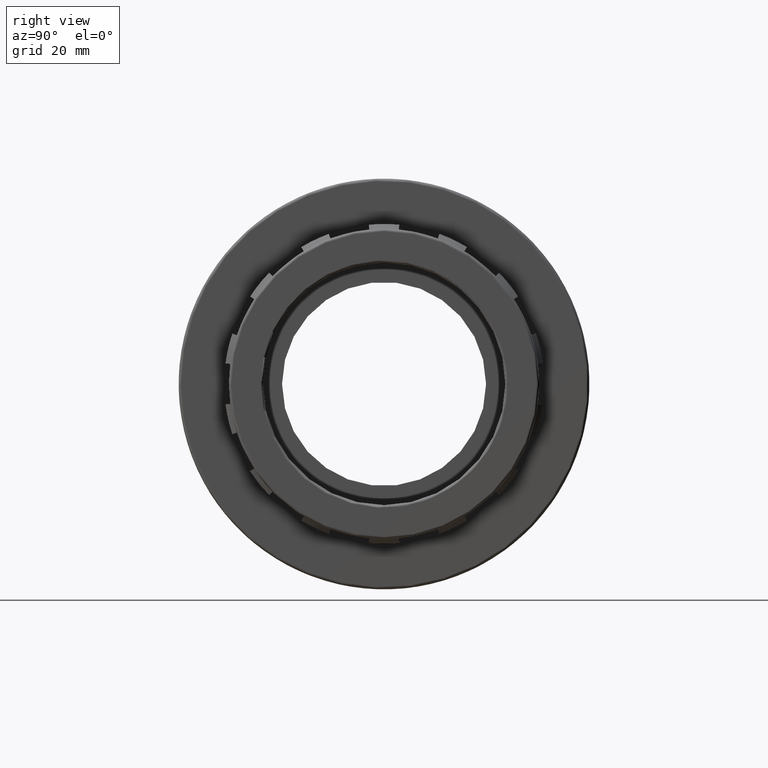
[diagram: clean part render]
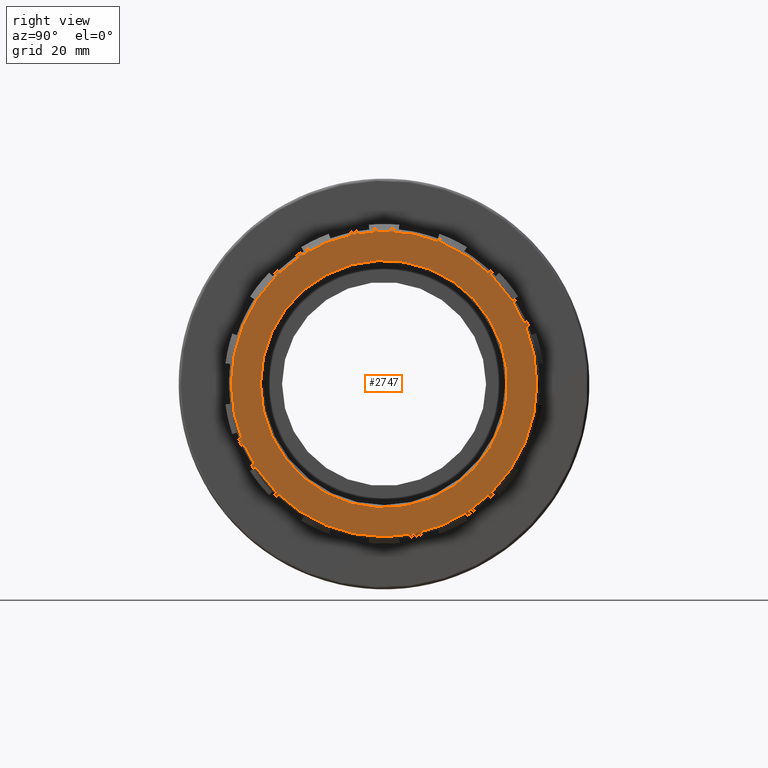
[diagram: same view with one face highlighted and labeled with its STEP entity id]
A machine part, right view. The second image highlights one B-rep face of the part: STEP entity #2747.
In plain terms, the highlighted planar face has unit normal (1, 0, 0).
Its self-contained STEP definition (entity closure, byte-faithful):
#55=FACE_BOUND('',#514,.T.);
#217=CIRCLE('',#3019,28.89456);
#218=CIRCLE('',#3021,35.69328);
#361=FACE_OUTER_BOUND('',#513,.T.);
#513=EDGE_LOOP('',(#2354));
#514=EDGE_LOOP('',(#2355));
#1322=VERTEX_POINT('',#4650);
#1323=VERTEX_POINT('',#4653);
#1716=EDGE_CURVE('',#1322,#1322,#217,.T.);
#1717=EDGE_CURVE('',#1323,#1323,#218,.T.);
#2354=ORIENTED_EDGE('',*,*,#1717,.F.);
#2355=ORIENTED_EDGE('',*,*,#1716,.F.);
#2610=PLANE('',#3020);
#2747=ADVANCED_FACE('',(#361,#55),#2610,.T.);
#3019=AXIS2_PLACEMENT_3D('',#4651,#3812,#3813);
#3020=AXIS2_PLACEMENT_3D('',#4652,#3814,#3815);
#3021=AXIS2_PLACEMENT_3D('',#4654,#3816,#3817);
#3812=DIRECTION('center_axis',(1.,1.83697019872103E-16,0.));
#3813=DIRECTION('ref_axis',(-1.83697019872103E-16,1.,6.12323399573677E-17));
#3814=DIRECTION('center_axis',(1.,1.83697019872103E-16,0.));
#3815=DIRECTION('ref_axis',(0.,0.,-1.));
#3816=DIRECTION('center_axis',(-1.,-1.83697019872103E-16,0.));
#3817=DIRECTION('ref_axis',(-1.83697019872103E-16,1.,6.12323399573677E-17));
#4650=CARTESIAN_POINT('',(52.,-28.89456,-5.30784456251567E-15));
#4651=CARTESIAN_POINT('Origin',(52.,1.91044900666987E-14,0.));
#4652=CARTESIAN_POINT('Origin',(52.,-36.25984,0.));
#4653=CARTESIAN_POINT('',(52.,-35.69328,2.18558305515351E-15));
#4654=CARTESIAN_POINT('Origin',(52.,1.91044900666987E-14,0.));